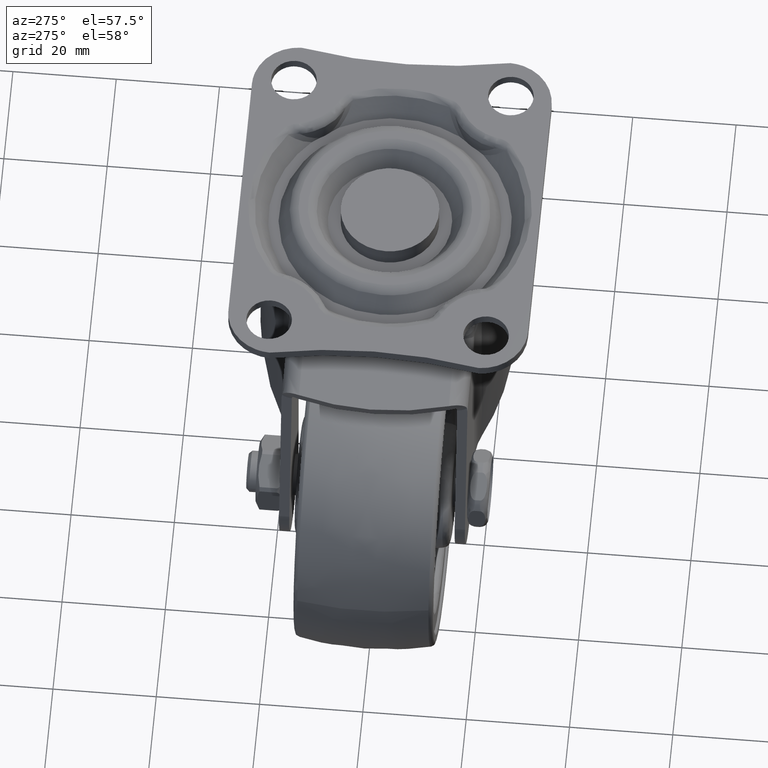
[diagram: clean part render]
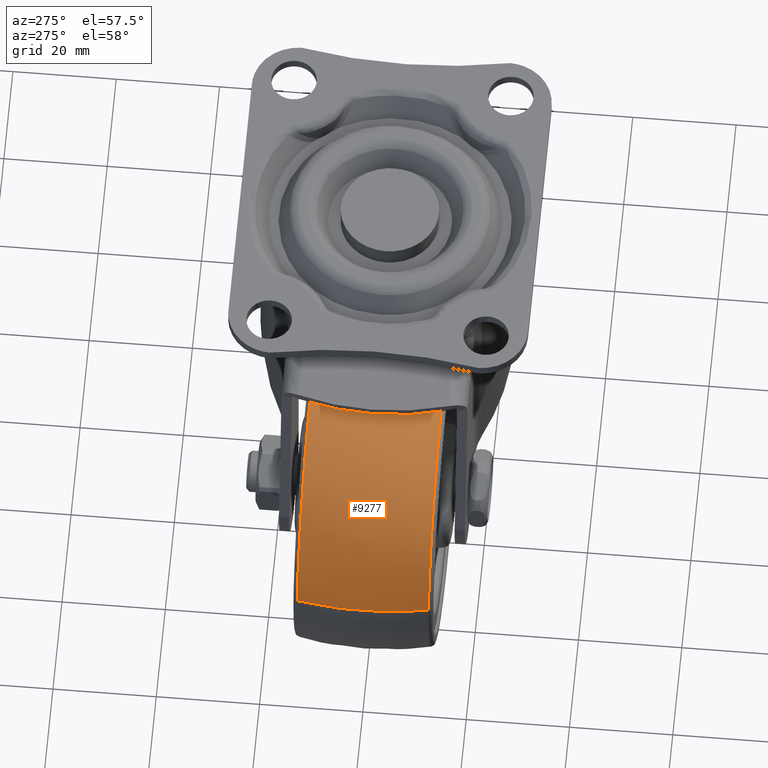
[diagram: same view with one face highlighted and labeled with its STEP entity id]
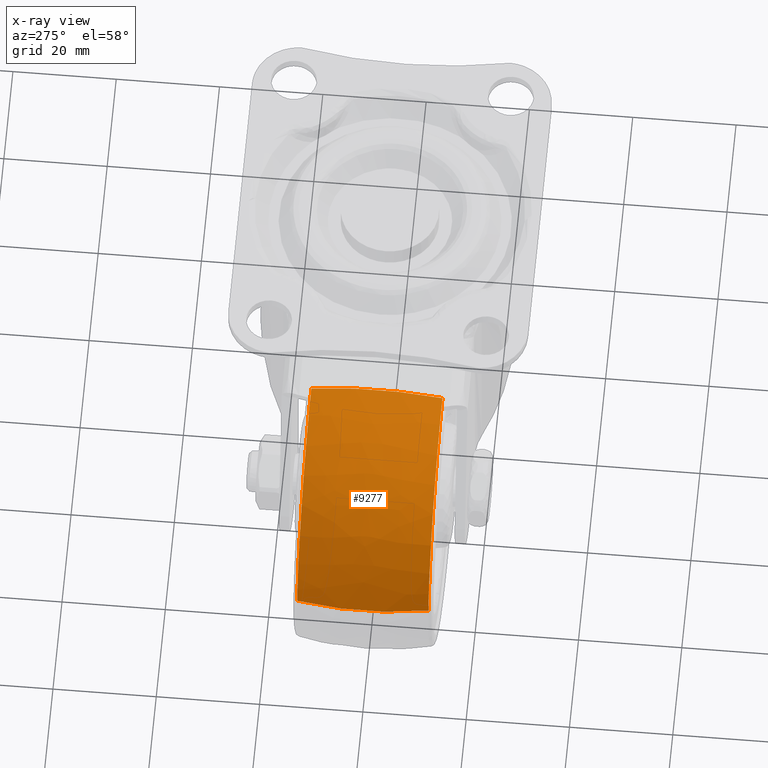
[diagram: x-ray of the same camera — body ghosted, the highlighted face saturated]
A machine part, auxiliary view. The second image highlights one B-rep face of the part: STEP entity #9277.
The next image is the same camera in x-ray: the body ghosted, the highlighted face saturated — about 0% of this face is hidden behind the body in this view.
In plain terms, the highlighted face is a freeform B-spline surface patch.
Its self-contained STEP definition (entity closure, byte-faithful):
#8029=CARTESIAN_POINT('',(-29.0,-12.695303709165209,-21.251823330309549));
#8030=VERTEX_POINT('',#8029);
#8044=CARTESIAN_POINT('',(-60.039171631068541,-12.695307140415560,-48.891954095315192));
#8045=VERTEX_POINT('',#8044);
#8046=CARTESIAN_POINT('',(-29.0,-12.695303709165209,-21.251823330309549));
#8047=CARTESIAN_POINT('',(-56.826240998177596,-12.695305424790378,-21.251824144026756));
#8048=CARTESIAN_POINT('',(-60.039171631068548,-12.695307140415556,-48.891954095315185));
#8056=(BOUNDED_CURVE()B_SPLINE_CURVE(2,(#8046,#8047,#8048),.UNSPECIFIED.,.F.,.U.)B_SPLINE_CURVE_WITH_KNOTS((3,3),(0.500000000000000,0.730000032484067),.UNSPECIFIED.)CURVE()GEOMETRIC_REPRESENTATION_ITEM()RATIONAL_B_SPLINE_CURVE((1.0,0.730538200634172,0.956886182127189))REPRESENTATION_ITEM(''));
#8057=EDGE_CURVE('',#8030,#8045,#8056,.T.);
#8124=CARTESIAN_POINT('',(-29.0,12.695303127355480,-21.251823214443561));
#8125=VERTEX_POINT('',#8124);
#8188=CARTESIAN_POINT('',(-59.537840564852459,12.695306312372590,-45.875159765368437));
#8189=VERTEX_POINT('',#8188);
#8203=CARTESIAN_POINT('',(-29.0,12.695303127355480,-21.251823214443561));
#8204=CARTESIAN_POINT('',(-54.196089858175625,12.695304652824735,-21.251823997004283));
#8205=CARTESIAN_POINT('',(-59.537840564852466,12.695306312372596,-45.875159765368437));
#8213=(BOUNDED_CURVE()B_SPLINE_CURVE(2,(#8203,#8204,#8205),.UNSPECIFIED.,.F.,.U.)B_SPLINE_CURVE_WITH_KNOTS((3,3),(0.500000000000000,0.713703258499292),.UNSPECIFIED.)CURVE()GEOMETRIC_REPRESENTATION_ITEM()RATIONAL_B_SPLINE_CURVE((1.0,0.749631058988877,0.927299386146505))REPRESENTATION_ITEM(''));
#8214=EDGE_CURVE('',#8125,#8189,#8213,.T.);
#8257=CARTESIAN_POINT('',(-60.039171757125992,12.695306496773149,-48.891954069631410));
#8258=VERTEX_POINT('',#8257);
#8274=CARTESIAN_POINT('',(-59.537840564852459,12.695306312372594,-45.875159765368437));
#8275=CARTESIAN_POINT('',(-59.862405858274087,12.695306404085477,-47.371276261529019));
#8276=CARTESIAN_POINT('',(-60.039171757125992,12.695306496773149,-48.891954069631417));
#8284=(BOUNDED_CURVE()B_SPLINE_CURVE(2,(#8274,#8275,#8276),.UNSPECIFIED.,.F.,.U.)B_SPLINE_CURVE_WITH_KNOTS((3,3),(0.713703258499292,0.730000032424754),.UNSPECIFIED.)CURVE()GEOMETRIC_REPRESENTATION_ITEM()RATIONAL_B_SPLINE_CURVE((0.927299386146505,0.940848176098216,0.956886182010447))REPRESENTATION_ITEM(''));
#8285=EDGE_CURVE('',#8189,#8258,#8284,.T.);
#9208=CARTESIAN_POINT('',(-60.039171631068541,-12.695307140415554,-48.891954095315192));
#9209=CARTESIAN_POINT('',(-61.282628953079296,-6.409372375657080,-48.747412504847908));
#9210=CARTESIAN_POINT('',(-61.282628952759907,1.897454E-015,-48.747412502100552));
#9211=CARTESIAN_POINT('',(-61.282628952440547,6.409372044325698,-48.747412499353203));
#9212=CARTESIAN_POINT('',(-60.039171757125992,12.695306496773144,-48.891954069631410));
#9220=(BOUNDED_CURVE()B_SPLINE_CURVE(2,(#9208,#9209,#9210,#9211,#9212),.UNSPECIFIED.,.F.,.U.)B_SPLINE_CURVE_WITH_KNOTS((3,2,3),(0.403932501776218,0.500000000000000,0.596067493385425),.UNSPECIFIED.)CURVE()GEOMETRIC_REPRESENTATION_ITEM()RATIONAL_B_SPLINE_CURVE((0.917088417782159,0.932254713046547,0.956886118190660,0.932254714287086,0.917088419309834))REPRESENTATION_ITEM(''));
#9221=EDGE_CURVE('',#8045,#8258,#9220,.T.);
#9226=CARTESIAN_POINT('',(-29.0,-12.695303709165206,-21.251823330309552));
#9227=CARTESIAN_POINT('',(-29.000000000000004,-6.409370609333303,-19.999994000000004));
#9228=CARTESIAN_POINT('',(-29.0,3.673818E-015,-19.999994000000001));
#9229=CARTESIAN_POINT('',(-28.999999999999996,6.409370309831882,-19.999994000000001));
#9230=CARTESIAN_POINT('',(-28.999999999999996,12.695303127355480,-21.251823214443558));
#9238=(BOUNDED_CURVE()B_SPLINE_CURVE(2,(#9226,#9227,#9228,#9229,#9230),.UNSPECIFIED.,.F.,.U.)B_SPLINE_CURVE_WITH_KNOTS((3,2,3),(0.403932527569444,0.500000000000000,0.596067468057005),.UNSPECIFIED.)CURVE()GEOMETRIC_REPRESENTATION_ITEM()RATIONAL_B_SPLINE_CURVE((0.958409165408591,0.974258798343333,1.0,0.974258799515223,0.958409166851727))REPRESENTATION_ITEM(''));
#9239=EDGE_CURVE('',#8030,#8125,#9238,.T.);
#9247=CARTESIAN_POINT('',(-28.999999999999996,-13.971435218348896,-21.519296162472415));
#9248=CARTESIAN_POINT('',(-29.0,-7.068324693730152,-19.999994000000001));
#9249=CARTESIAN_POINT('',(-29.0,3.673818E-015,-19.999994000000001));
#9250=CARTESIAN_POINT('',(-29.0,7.068324693730155,-19.999994000000001));
#9251=CARTESIAN_POINT('',(-28.999999999999996,13.971435218348896,-21.519296162472415));
#9252=CARTESIAN_POINT('',(-56.588054310145559,-13.971435218348899,-21.519296162472411));
#9253=CARTESIAN_POINT('',(-57.940980276875685,-7.068324693730154,-19.999993999999997));
#9254=CARTESIAN_POINT('',(-57.940980276875678,3.673818E-015,-19.999994000000012));
#9255=CARTESIAN_POINT('',(-57.940980276875685,7.068324693730157,-19.999993999999997));
#9256=CARTESIAN_POINT('',(-56.588054310145559,13.971435218348903,-21.519296162472411));
#9257=CARTESIAN_POINT('',(-59.773487739699988,-13.971435218348905,-48.922831600174931));
#9258=CARTESIAN_POINT('',(-61.282628260515168,-7.068324693730153,-48.747406546870103));
#9259=CARTESIAN_POINT('',(-61.282628260515175,3.673818E-015,-48.747406546870103));
#9260=CARTESIAN_POINT('',(-61.282628260515168,7.068324693730154,-48.747406546870103));
#9261=CARTESIAN_POINT('',(-59.773487739699988,13.971435218348905,-48.922831600174931));
#9269=(BOUNDED_SURFACE()B_SPLINE_SURFACE(2,2,((#9247,#9252,#9257),(#9248,#9253,#9258),(#9249,#9254,#9259),(#9250,#9255,#9260),(#9251,#9256,#9261)),.UNSPECIFIED.,.F.,.F.,.U.)B_SPLINE_SURFACE_WITH_KNOTS((3,2,3),(3,3),(0.0,14.378531005842250,28.757062011684500),(0.0,49.485603581165599),.UNSPECIFIED.)GEOMETRIC_REPRESENTATION_ITEM()RATIONAL_B_SPLINE_SURFACE(((0.955341121338777,0.697913220132511,0.914152657145774),(0.971687247652216,0.709854690458962,0.929794038501296),(1.0,0.730538238691624,0.956886118190660),(0.971687247652216,0.709854690458962,0.929794038501296),(0.955341121338777,0.697913220132511,0.914152657145774)))REPRESENTATION_ITEM('')SURFACE());
#9270=ORIENTED_EDGE('',*,*,#8057,.F.);
#9271=ORIENTED_EDGE('',*,*,#9239,.T.);
#9272=ORIENTED_EDGE('',*,*,#8214,.T.);
#9273=ORIENTED_EDGE('',*,*,#8285,.T.);
#9274=ORIENTED_EDGE('',*,*,#9221,.F.);
#9275=EDGE_LOOP('',(#9270,#9271,#9272,#9273,#9274));
#9276=FACE_OUTER_BOUND('',#9275,.T.);
#9277=ADVANCED_FACE('',(#9276),#9269,.T.);